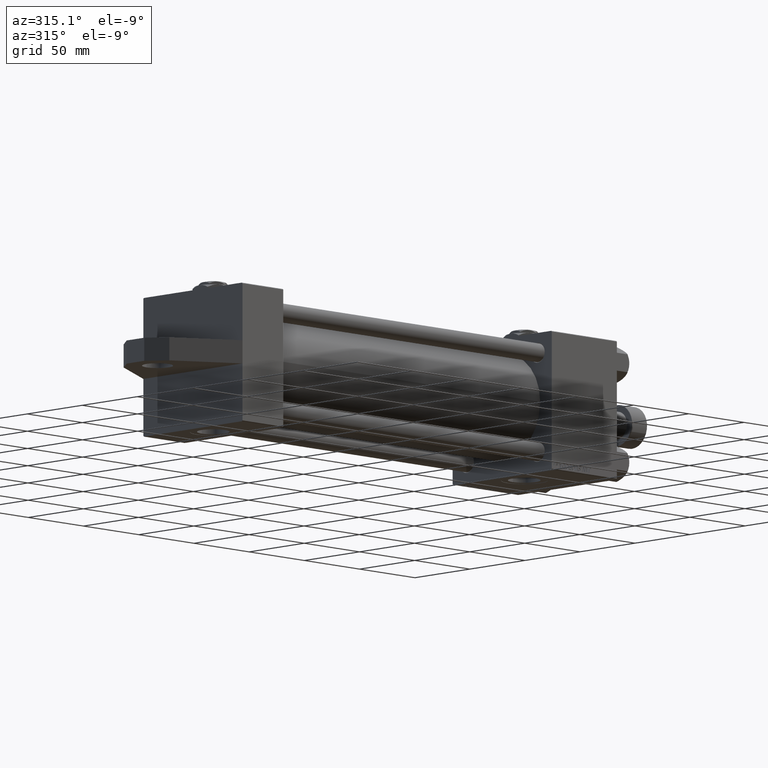
[diagram: clean part render]
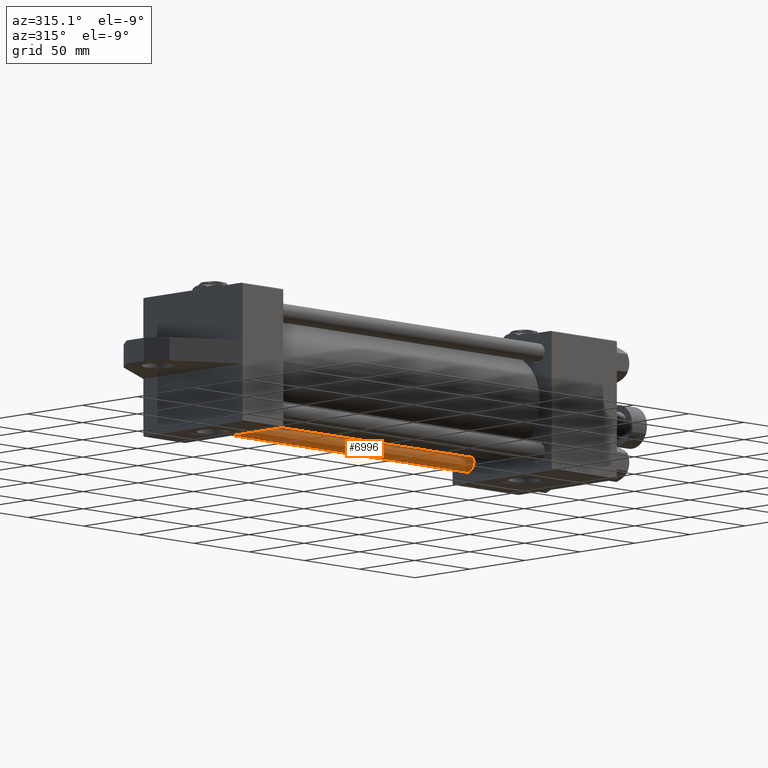
[diagram: same view with one face highlighted and labeled with its STEP entity id]
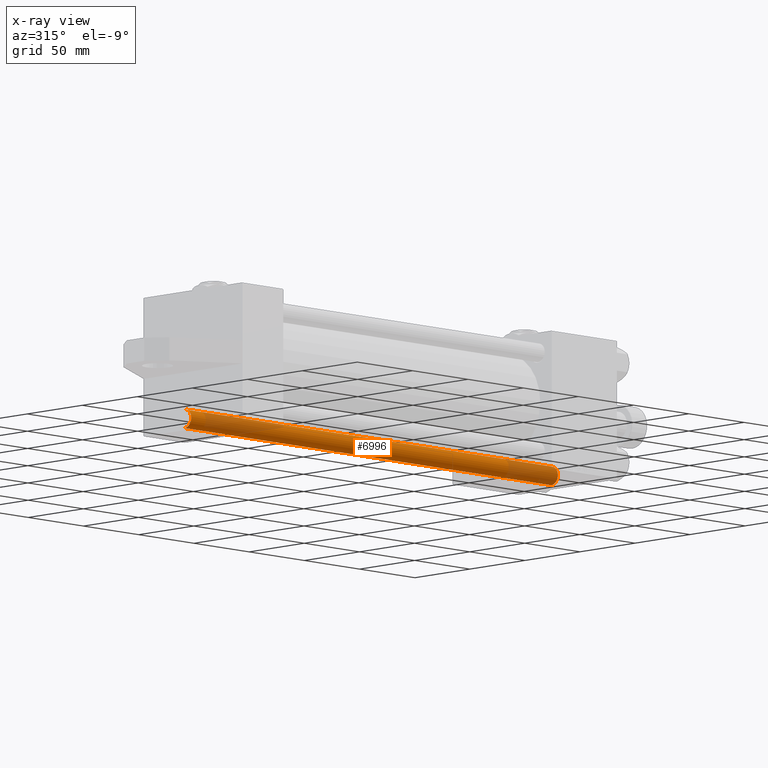
[diagram: x-ray of the same camera — body ghosted, the highlighted face saturated]
A machine part, auxiliary view. The second image highlights one B-rep face of the part: STEP entity #6996.
The next image is the same camera in x-ray: the body ghosted, the highlighted face saturated — about 26% of this face is hidden behind the body in this view.
In plain terms, the highlighted cylindrical surface (edge-blend (fillet) strip) has radius 6 mm, axis along (1, -0, -0).
Its self-contained STEP definition (entity closure, byte-faithful):
#526 = ORIENTED_EDGE ( 'NONE', *, *, #40029, .T. ) ;
#870 = DIRECTION ( 'NONE',  ( 1.000000000000000000, 0.000000000000000000, 0.000000000000000000 ) ) ;
#1114 = CARTESIAN_POINT ( 'NONE',  ( 0.000000000000000000, 0.000000000000000000, 0.5000000000000004441 ) ) ;
#2061 = EDGE_CURVE ( 'NONE', #11646, #38192, #35016, .T. ) ;
#3896 = CARTESIAN_POINT ( 'NONE',  ( -6.000000000000000888, 0.000000000000000000, 332.5000000000001137 ) ) ;
#5731 = FACE_OUTER_BOUND ( 'NONE', #36895, .T. ) ;
#6996 = ADVANCED_FACE ( 'NONE', ( #5731 ), #9906, .T. ) ;
#9906 = CYLINDRICAL_SURFACE ( 'NONE', #26433, 6.000000000000000888 ) ;
#11646 = VERTEX_POINT ( 'NONE', #44167 ) ;
#12390 = VECTOR ( 'NONE', #33485, 1000.000000000000000 ) ;
#13437 = DIRECTION ( 'NONE',  ( 0.000000000000000000, 0.000000000000000000, -1.000000000000000000 ) ) ;
#14263 = CARTESIAN_POINT ( 'NONE',  ( -6.000000000000000888, 0.000000000000000000, 333.0000000000000000 ) ) ;
#14278 = ORIENTED_EDGE ( 'NONE', *, *, #2061, .T. ) ;
#16194 = AXIS2_PLACEMENT_3D ( 'NONE', #46621, #13437, #24730 ) ;
#16320 = VERTEX_POINT ( 'NONE', #31073 ) ;
#18244 = CARTESIAN_POINT ( 'NONE',  ( 6.000000000000000888, 7.347880794884120722E-16, 333.0000000000000000 ) ) ;
#18662 = CIRCLE ( 'NONE', #46148, 6.000000000000000888 ) ;
#24664 = DIRECTION ( 'NONE',  ( -1.000000000000000000, 0.000000000000000000, 0.000000000000000000 ) ) ;
#24730 = DIRECTION ( 'NONE',  ( 1.000000000000000000, 0.000000000000000000, 0.000000000000000000 ) ) ;
#25321 = DIRECTION ( 'NONE',  ( -0.000000000000000000, -0.000000000000000000, -1.000000000000000000 ) ) ;
#25387 = LINE ( 'NONE', #18244, #12390 ) ;
#26199 = DIRECTION ( 'NONE',  ( -0.000000000000000000, -0.000000000000000000, 1.000000000000000000 ) ) ;
#26433 = AXIS2_PLACEMENT_3D ( 'NONE', #27865, #43352, #24664 ) ;
#27865 = CARTESIAN_POINT ( 'NONE',  ( 0.000000000000000000, 0.000000000000000000, 333.0000000000000000 ) ) ;
#28780 = LINE ( 'NONE', #14263, #28898 ) ;
#28898 = VECTOR ( 'NONE', #25321, 1000.000000000000000 ) ;
#31073 = CARTESIAN_POINT ( 'NONE',  ( -6.000000000000000888, 0.000000000000000000, 0.5000000000000004441 ) ) ;
#33485 = DIRECTION ( 'NONE',  ( -0.000000000000000000, -0.000000000000000000, -1.000000000000000000 ) ) ;
#35016 = CIRCLE ( 'NONE', #16194, 6.000000000000000888 ) ;
#35984 = VERTEX_POINT ( 'NONE', #41907 ) ;
#36895 = EDGE_LOOP ( 'NONE', ( #38182, #14278, #526, #38210 ) ) ;
#38182 = ORIENTED_EDGE ( 'NONE', *, *, #40798, .F. ) ;
#38192 = VERTEX_POINT ( 'NONE', #3896 ) ;
#38210 = ORIENTED_EDGE ( 'NONE', *, *, #40254, .T. ) ;
#40029 = EDGE_CURVE ( 'NONE', #38192, #16320, #28780, .T. ) ;
#40254 = EDGE_CURVE ( 'NONE', #16320, #35984, #18662, .T. ) ;
#40798 = EDGE_CURVE ( 'NONE', #11646, #35984, #25387, .T. ) ;
#41907 = CARTESIAN_POINT ( 'NONE',  ( 6.000000000000000888, 7.347880794884120722E-16, 0.5000000000000004441 ) ) ;
#43352 = DIRECTION ( 'NONE',  ( -0.000000000000000000, -0.000000000000000000, -1.000000000000000000 ) ) ;
#44167 = CARTESIAN_POINT ( 'NONE',  ( 6.000000000000000888, 7.347880794884120722E-16, 332.5000000000001137 ) ) ;
#46148 = AXIS2_PLACEMENT_3D ( 'NONE', #1114, #26199, #870 ) ;
#46621 = CARTESIAN_POINT ( 'NONE',  ( 0.000000000000000000, 0.000000000000000000, 332.5000000000001137 ) ) ;